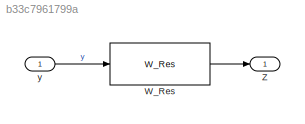
MODEL slx_b33c7961799a
KIND model
CONFIG AbsTol = auto
CONFIG EnableMultiTasking = off
CONFIG FixedStep = auto
CONFIG MaxStep = 0.001
CONFIG MinStep = auto
CONFIG RelTol = 1e-3
CONFIG SampleTimeConstraint = Unconstrained
CONFIG SolverName = VariableStepAuto
CONFIG StartTime = 0.0
CONFIG StopTime = 50
WORKSPACE source: mxarray member
WORKSPACE f_r = [100 100]
WORKSPACE j = 1
BLOCK [Reference] W_Res  REF=resonance_lib/Weights/W_Res  (lib defined in slx_0762205c3b4b)
  Ports = [1, 1]
  SourceBlock = resonance_lib/Weights/W_Res
BLOCK [Outport] Z
BLOCK [Inport] y
LINE W_Res:1 -> Z:1
LINE y:1 -> W_Res:1
